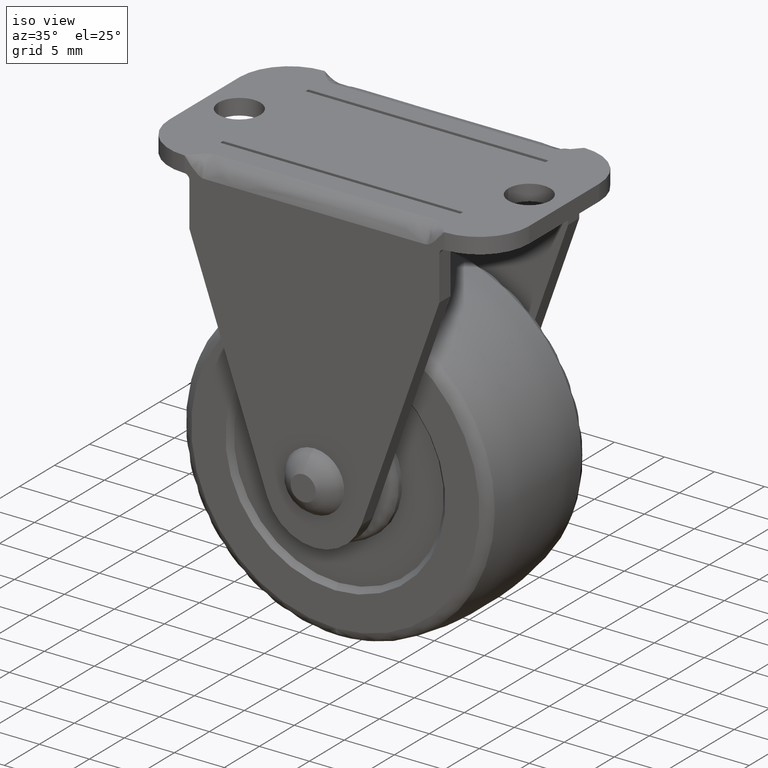
[diagram: clean part render]
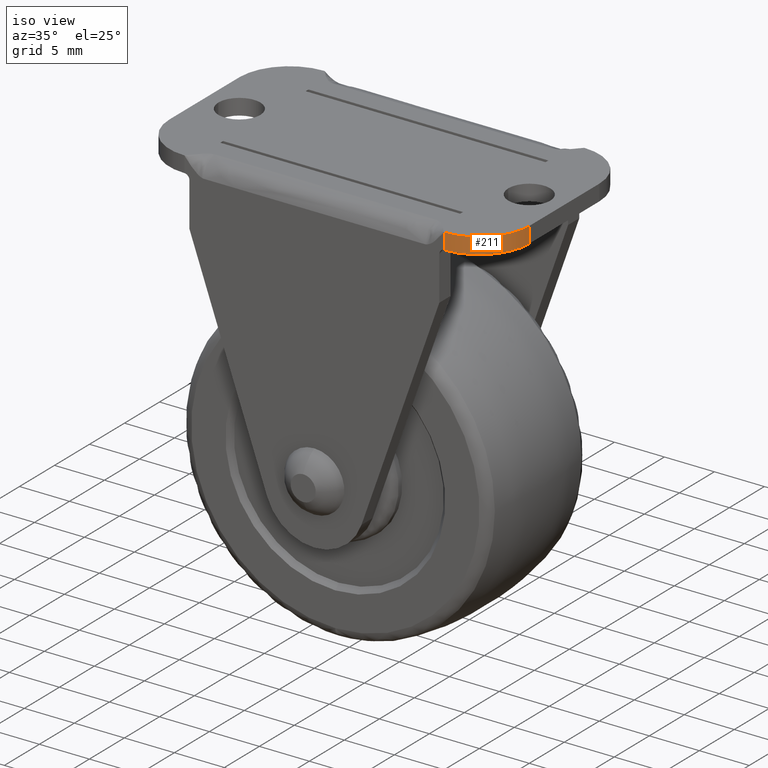
[diagram: same view with one face highlighted and labeled with its STEP entity id]
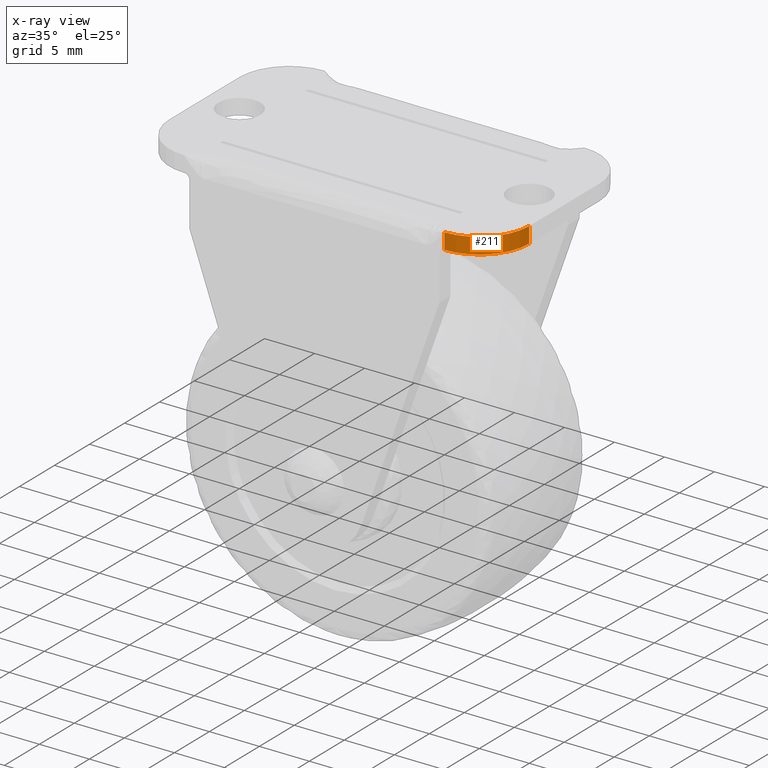
[diagram: x-ray of the same camera — body ghosted, the highlighted face saturated]
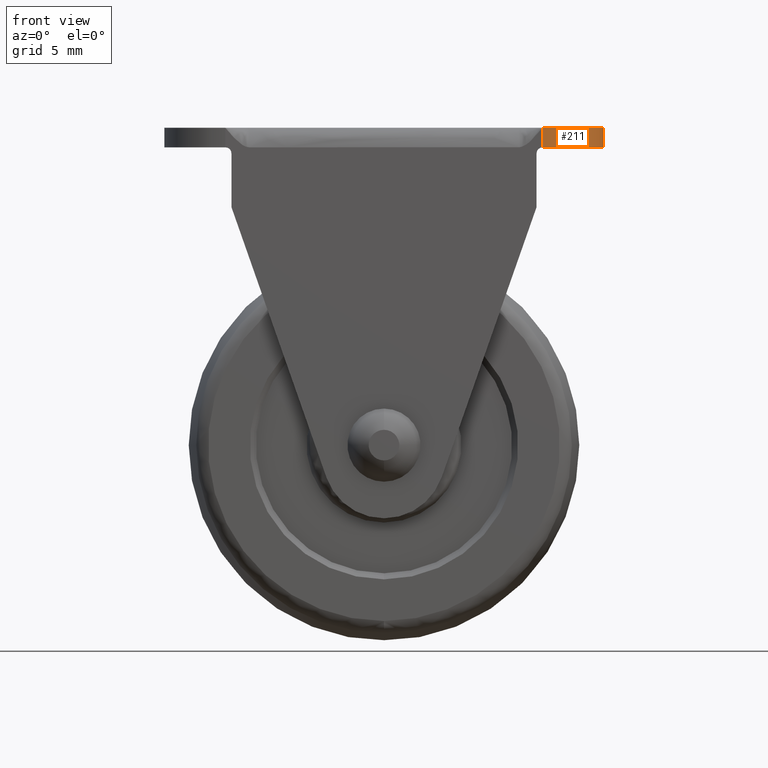
[diagram: same view with one face highlighted and labeled with its STEP entity id]
A machine part, iso view. The second image highlights one B-rep face of the part: STEP entity #211.
The next image is the same camera in x-ray: the body ghosted, the highlighted face saturated — about 0% of this face is hidden behind the body in this view.
A second angle (front view) of the same face is appended — the face is thin or edge-on in the first view.
In plain terms, the highlighted cylindrical surface (partial cylindrical patch) has radius 5 mm, axis along (-0, -0, -1).
Its self-contained STEP definition (entity closure, byte-faithful):
#211=ADVANCED_FACE('',(#872),#871,.T.);
#871=CYLINDRICAL_SURFACE('',#1776,5.00000000000E+00);
#872=FACE_OUTER_BOUND('',#1777,.T.);
#1773=CARTESIAN_POINT('',(1.30000000000E+01,-5.00000000000E+00,-9.74000000000E+02));
#1774=DIRECTION('',(-0.00000000000E+00,-0.00000000000E+00,-1.00000000000E+00));
#1775=DIRECTION('',(-1.00000000000E+00,-0.00000000000E+00,-0.00000000000E+00));
#1776=AXIS2_PLACEMENT_3D('',#1773,#1774,#1775);
#1777=EDGE_LOOP('',(#2275,#2276,#2277,#2278));
#2275=ORIENTED_EDGE('',*,*,#2452,.F.);
#2276=ORIENTED_EDGE('',*,*,#2521,.F.);
#2277=ORIENTED_EDGE('',*,*,#2440,.T.);
#2278=ORIENTED_EDGE('',*,*,#2514,.T.);
#2440=EDGE_CURVE('',#3048,#3041,#3049,.T.);
#2452=EDGE_CURVE('',#3123,#3130,#3131,.T.);
#2514=EDGE_CURVE('',#3041,#3130,#3543,.T.);
#2521=EDGE_CURVE('',#3048,#3123,#3585,.T.);
#3041=VERTEX_POINT('',#4128);
#3048=VERTEX_POINT('',#4132);
#3049=CIRCLE('',#4136,5.00000000000E+00);
#3123=VERTEX_POINT('',#4181);
#3130=VERTEX_POINT('',#4192);
#3131=CIRCLE('',#4196,5.00000000000E+00);
#3543=LINE('',#4449,#4450);
#3585=LINE('',#4477,#4478);
#4128=CARTESIAN_POINT('',(1.80000000000E+01,-5.00000436332E+00,2.44000010000E+01));
#4132=CARTESIAN_POINT('',(1.30000000000E+01,-1.00000000000E+01,2.44000010000E+01));
#4133=CARTESIAN_POINT('',(1.30000000000E+01,-5.00000000000E+00,2.44000010000E+01));
#4134=DIRECTION('',(0.00000000000E+00,-0.00000000000E+00,1.00000000000E+00));
#4135=DIRECTION('',(1.00000000000E+00,-0.00000000000E+00,-0.00000000000E+00));
#4136=AXIS2_PLACEMENT_3D('',#4133,#4134,#4135);
#4181=CARTESIAN_POINT('',(1.30000000000E+01,-1.00000000000E+01,2.60000000000E+01));
#4192=CARTESIAN_POINT('',(1.80000000000E+01,-5.00000436332E+00,2.60000000000E+01));
#4193=CARTESIAN_POINT('',(1.30000000000E+01,-5.00000000000E+00,2.60000000000E+01));
#4194=DIRECTION('',(0.00000000000E+00,-0.00000000000E+00,1.00000000000E+00));
#4195=DIRECTION('',(1.00000000000E+00,-0.00000000000E+00,-0.00000000000E+00));
#4196=AXIS2_PLACEMENT_3D('',#4193,#4194,#4195);
#4449=CARTESIAN_POINT('',(1.80000000000E+01,-5.00000436332E+00,2.44000010000E+01));
#4450=VECTOR('',#4451,1.59999900000E+00);
#4451=DIRECTION('',(0.00000000000E+00,0.00000000000E+00,1.00000000000E+00));
#4477=CARTESIAN_POINT('',(1.30000000000E+01,-1.00000000000E+01,2.44000010000E+01));
#4478=VECTOR('',#4479,1.59999900000E+00);
#4479=DIRECTION('',(0.00000000000E+00,0.00000000000E+00,1.00000000000E+00));